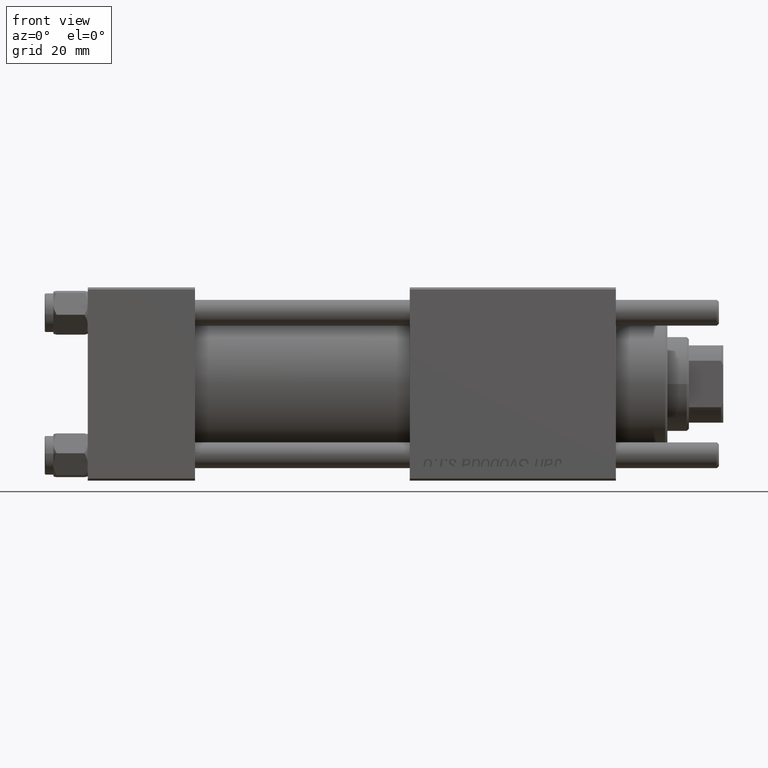
[diagram: clean part render]
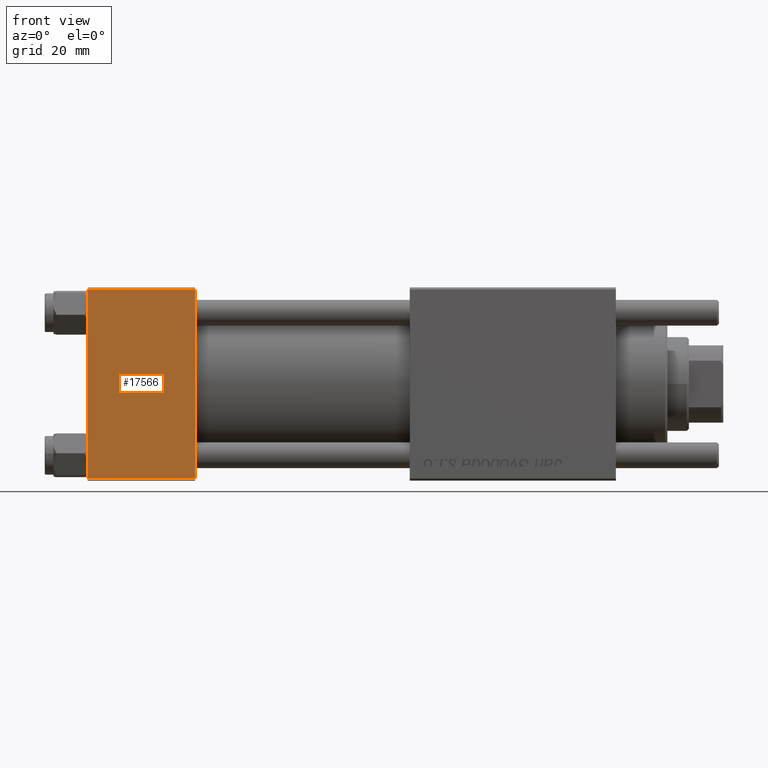
[diagram: same view with one face highlighted and labeled with its STEP entity id]
A machine part, front view. The second image highlights one B-rep face of the part: STEP entity #17566.
In plain terms, the highlighted planar face has unit normal (0, 1, 0).
Its self-contained STEP definition (entity closure, byte-faithful):
#4500 = EDGE_CURVE ( 'NONE', #47031, #10187, #49308, .T. ) ;
#5884 = DIRECTION ( 'NONE',  ( -1.000000000000000000, 0.000000000000000000, 0.000000000000000000 ) ) ;
#7429 = CARTESIAN_POINT ( 'NONE',  ( 25.00000000000000000, -22.50000000000000000, -21.99999999999997158 ) ) ;
#10014 = AXIS2_PLACEMENT_3D ( 'NONE', #47504, #34017, #31052 ) ;
#10187 = VERTEX_POINT ( 'NONE', #28582 ) ;
#12305 = VERTEX_POINT ( 'NONE', #41237 ) ;
#13315 = CARTESIAN_POINT ( 'NONE',  ( 25.00000000000000000, -22.50000000000000000, 22.00000000000000000 ) ) ;
#16640 = ORIENTED_EDGE ( 'NONE', *, *, #4500, .T. ) ;
#17446 = EDGE_LOOP ( 'NONE', ( #47993, #19887, #43010, #16640 ) ) ;
#17566 = ADVANCED_FACE ( 'NONE', ( #26741 ), #29985, .F. ) ;
#17664 = DIRECTION ( 'NONE',  ( 0.000000000000000000, 0.000000000000000000, -1.000000000000000000 ) ) ;
#18236 = LINE ( 'NONE', #40063, #34213 ) ;
#19887 = ORIENTED_EDGE ( 'NONE', *, *, #54801, .T. ) ;
#20287 = LINE ( 'NONE', #32632, #49111 ) ;
#25489 = CARTESIAN_POINT ( 'NONE',  ( 0.000000000000000000, -22.50000000000000000, 22.50000000000000000 ) ) ;
#26741 = FACE_OUTER_BOUND ( 'NONE', #17446, .T. ) ;
#26955 = VECTOR ( 'NONE', #42996, 1000.000000000000000 ) ;
#28582 = CARTESIAN_POINT ( 'NONE',  ( 0.000000000000000000, -22.50000000000000000, 22.00000000000000000 ) ) ;
#29985 = PLANE ( 'NONE',  #10014 ) ;
#31052 = DIRECTION ( 'NONE',  ( 0.000000000000000000, -0.000000000000000000, 1.000000000000000000 ) ) ;
#32632 = CARTESIAN_POINT ( 'NONE',  ( 25.00000000000000000, -22.50000000000000000, -21.99999999999998579 ) ) ;
#34017 = DIRECTION ( 'NONE',  ( -0.000000000000000000, 1.000000000000000000, 0.000000000000000000 ) ) ;
#34213 = VECTOR ( 'NONE', #17664, 1000.000000000000000 ) ;
#34821 = EDGE_CURVE ( 'NONE', #47031, #40862, #18236, .T. ) ;
#35965 = EDGE_CURVE ( 'NONE', #10187, #12305, #38418, .T. ) ;
#37794 = DIRECTION ( 'NONE',  ( 1.000000000000000000, 0.000000000000000000, 0.000000000000000000 ) ) ;
#38418 = LINE ( 'NONE', #25489, #26955 ) ;
#40063 = CARTESIAN_POINT ( 'NONE',  ( 25.00000000000000000, -22.50000000000000000, 22.50000000000000000 ) ) ;
#40862 = VERTEX_POINT ( 'NONE', #7429 ) ;
#41237 = CARTESIAN_POINT ( 'NONE',  ( 0.000000000000000000, -22.50000000000000000, -21.99999999999997158 ) ) ;
#42996 = DIRECTION ( 'NONE',  ( 0.000000000000000000, 0.000000000000000000, -1.000000000000000000 ) ) ;
#43010 = ORIENTED_EDGE ( 'NONE', *, *, #34821, .F. ) ;
#47031 = VERTEX_POINT ( 'NONE', #13315 ) ;
#47504 = CARTESIAN_POINT ( 'NONE',  ( 25.00000000000000000, -22.50000000000000000, 22.50000000000000000 ) ) ;
#47993 = ORIENTED_EDGE ( 'NONE', *, *, #35965, .T. ) ;
#49111 = VECTOR ( 'NONE', #37794, 1000.000000000000000 ) ;
#49308 = LINE ( 'NONE', #49862, #52978 ) ;
#49862 = CARTESIAN_POINT ( 'NONE',  ( 25.00000000000000000, -22.50000000000000000, 22.00000000000000000 ) ) ;
#52978 = VECTOR ( 'NONE', #5884, 1000.000000000000000 ) ;
#54801 = EDGE_CURVE ( 'NONE', #12305, #40862, #20287, .T. ) ;